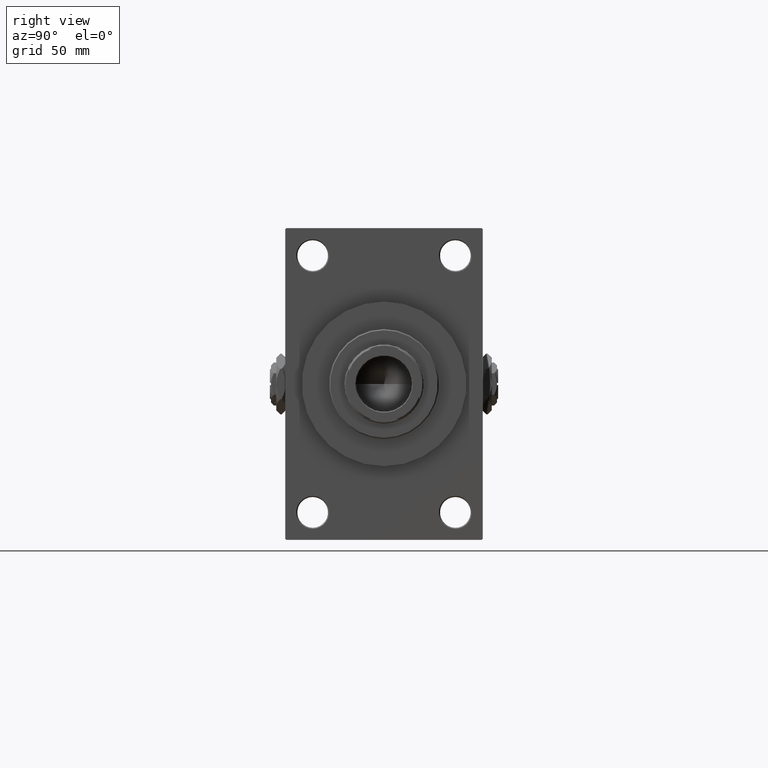
[diagram: clean part render]
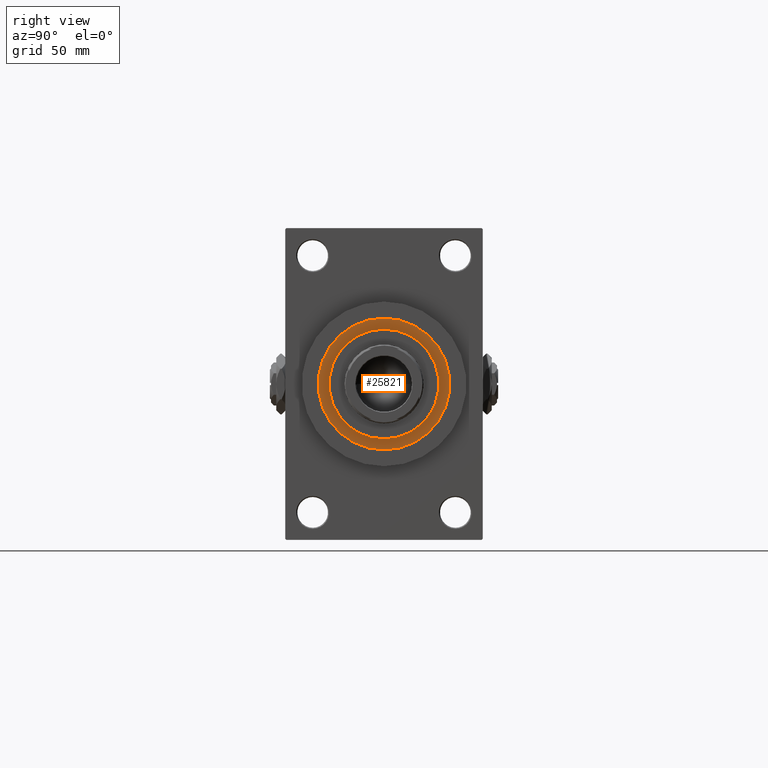
[diagram: same view with one face highlighted and labeled with its STEP entity id]
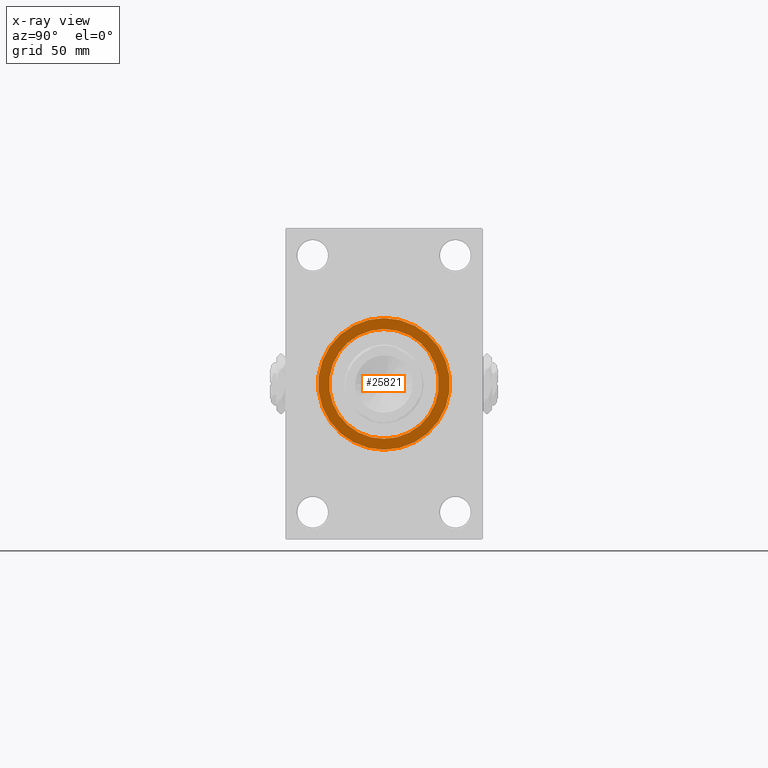
[diagram: x-ray of the same camera — body ghosted, the highlighted face saturated]
A machine part, right view. The second image highlights one B-rep face of the part: STEP entity #25821.
The next image is the same camera in x-ray: the body ghosted, the highlighted face saturated — about 0% of this face is hidden behind the body in this view.
In plain terms, the highlighted planar face has unit normal (1, 0, 0).
Its self-contained STEP definition (entity closure, byte-faithful):
#1369 = EDGE_CURVE ( 'NONE', #39489, #4951, #48858, .T. ) ;
#1411 = EDGE_CURVE ( 'NONE', #4951, #39489, #46470, .T. ) ;
#2023 = EDGE_CURVE ( 'NONE', #36710, #2131, #6960, .T. ) ;
#2131 = VERTEX_POINT ( 'NONE', #22369 ) ;
#3444 = ORIENTED_EDGE ( 'NONE', *, *, #1369, .F. ) ;
#4951 = VERTEX_POINT ( 'NONE', #19942 ) ;
#5806 = EDGE_LOOP ( 'NONE', ( #3444, #44185 ) ) ;
#6960 = CIRCLE ( 'NONE', #7773, 30.00000000000000000 ) ;
#7773 = AXIS2_PLACEMENT_3D ( 'NONE', #27866, #43171, #47154 ) ;
#11782 = DIRECTION ( 'NONE',  ( 1.000000000000000000, 0.000000000000000000, -0.000000000000000000 ) ) ;
#12300 = CARTESIAN_POINT ( 'NONE',  ( -25.00000000000000000, 0.000000000000000000, 43.25999999999999801 ) ) ;
#12314 = CARTESIAN_POINT ( 'NONE',  ( 0.000000000000000000, 0.000000000000000000, 43.25999999999999801 ) ) ;
#13620 = CARTESIAN_POINT ( 'NONE',  ( 30.00000000000000000, 3.673940397442059178E-15, 43.25999999999999801 ) ) ;
#14240 = DIRECTION ( 'NONE',  ( 0.000000000000000000, 0.000000000000000000, 1.000000000000000000 ) ) ;
#15003 = FACE_OUTER_BOUND ( 'NONE', #29254, .T. ) ;
#17987 = ORIENTED_EDGE ( 'NONE', *, *, #2023, .T. ) ;
#19044 = AXIS2_PLACEMENT_3D ( 'NONE', #30363, #30608, #11782 ) ;
#19499 = CARTESIAN_POINT ( 'NONE',  ( 0.000000000000000000, 0.000000000000000000, 43.25999999999999801 ) ) ;
#19942 = CARTESIAN_POINT ( 'NONE',  ( 25.00000000000000000, 3.061616997868383043E-15, 43.25999999999999801 ) ) ;
#21923 = DIRECTION ( 'NONE',  ( 1.000000000000000000, 0.000000000000000000, 0.000000000000000000 ) ) ;
#21933 = AXIS2_PLACEMENT_3D ( 'NONE', #19499, #27685, #34378 ) ;
#22369 = CARTESIAN_POINT ( 'NONE',  ( -30.00000000000000000, 0.000000000000000000, 43.25999999999999801 ) ) ;
#25821 = ADVANCED_FACE ( 'NONE', ( #48951, #15003 ), #45215, .T. ) ;
#27685 = DIRECTION ( 'NONE',  ( 0.000000000000000000, 0.000000000000000000, 1.000000000000000000 ) ) ;
#27866 = CARTESIAN_POINT ( 'NONE',  ( 0.000000000000000000, 0.000000000000000000, 43.25999999999999801 ) ) ;
#27925 = DIRECTION ( 'NONE',  ( 1.000000000000000000, 0.000000000000000000, 0.000000000000000000 ) ) ;
#29254 = EDGE_LOOP ( 'NONE', ( #44621, #17987 ) ) ;
#30363 = CARTESIAN_POINT ( 'NONE',  ( 0.000000000000000000, 0.000000000000000000, 43.25999999999999801 ) ) ;
#30608 = DIRECTION ( 'NONE',  ( 0.000000000000000000, 0.000000000000000000, 1.000000000000000000 ) ) ;
#33075 = CARTESIAN_POINT ( 'NONE',  ( 0.000000000000000000, 0.000000000000000000, 43.25999999999999801 ) ) ;
#33483 = AXIS2_PLACEMENT_3D ( 'NONE', #33075, #14240, #21923 ) ;
#33825 = AXIS2_PLACEMENT_3D ( 'NONE', #12314, #35352, #27925 ) ;
#34378 = DIRECTION ( 'NONE',  ( 1.000000000000000000, 0.000000000000000000, 0.000000000000000000 ) ) ;
#35352 = DIRECTION ( 'NONE',  ( 0.000000000000000000, 0.000000000000000000, 1.000000000000000000 ) ) ;
#36710 = VERTEX_POINT ( 'NONE', #13620 ) ;
#37422 = EDGE_CURVE ( 'NONE', #2131, #36710, #48504, .T. ) ;
#39489 = VERTEX_POINT ( 'NONE', #12300 ) ;
#43171 = DIRECTION ( 'NONE',  ( 0.000000000000000000, 0.000000000000000000, 1.000000000000000000 ) ) ;
#44185 = ORIENTED_EDGE ( 'NONE', *, *, #1411, .F. ) ;
#44621 = ORIENTED_EDGE ( 'NONE', *, *, #37422, .T. ) ;
#45215 = PLANE ( 'NONE',  #19044 ) ;
#46470 = CIRCLE ( 'NONE', #21933, 25.00000000000000000 ) ;
#47154 = DIRECTION ( 'NONE',  ( 1.000000000000000000, 0.000000000000000000, 0.000000000000000000 ) ) ;
#48504 = CIRCLE ( 'NONE', #33483, 30.00000000000000000 ) ;
#48858 = CIRCLE ( 'NONE', #33825, 25.00000000000000000 ) ;
#48951 = FACE_BOUND ( 'NONE', #5806, .T. ) ;